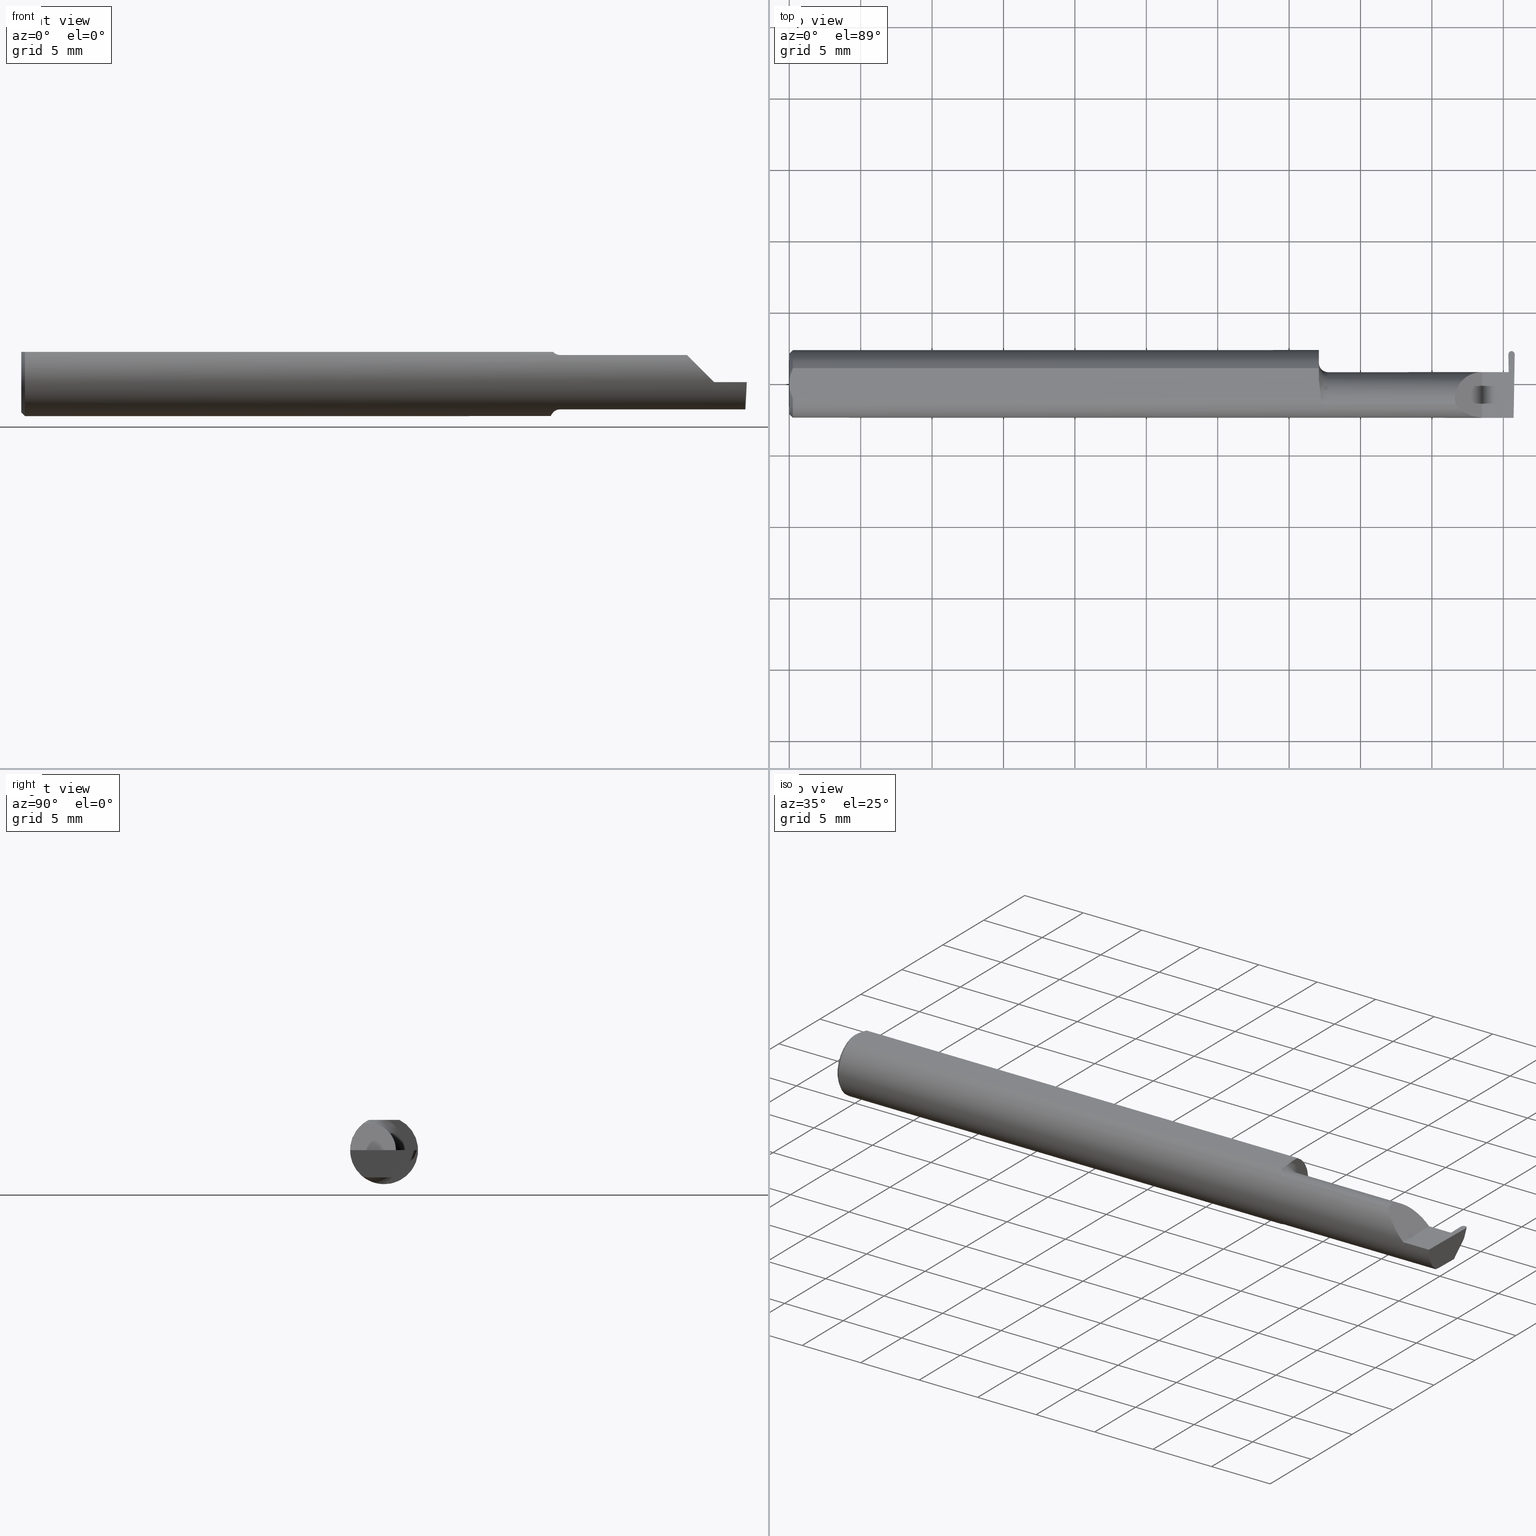
[diagram: canonical four-view strip — front | top / right | iso, engineering-drawing reading convention]
A machine part, canonical four-view strip (front | top / right | iso — engineering-drawing reading convention). The complete STEP part file that produces these views, byte-faithful:
ISO-10303-21;
HEADER;
FILE_DESCRIPTION (( 'STEP AP203' ),
    '1' );
FILE_NAME ('221810-GFR017K-8.STEP',
    '2024-06-17T17:58:59',
    ( '' ),
    ( '' ),
    'SwSTEP 2.0',
    'SolidWorks 2022',
    '' );
FILE_SCHEMA (( 'CONFIG_CONTROL_DESIGN' ));
ENDSEC;

DATA;
#1 = AXIS2_PLACEMENT_3D ( 'NONE', #292, #599, #550 ) ;
#2 = APPLICATION_CONTEXT ( 'configuration controlled 3d designs of mechanical parts and assemblies' ) ;
#3 = ORIENTED_EDGE ( 'NONE', *, *, #503, .F. ) ;
#4 = CARTESIAN_POINT ( 'NONE',  ( 1.459999999999999964, -0.006757276995305246635, -0.09335576686851605743 ) ) ;
#5 = FACE_OUTER_BOUND ( 'NONE', #143, .T. ) ;
#6 = EDGE_LOOP ( 'NONE', ( #461, #192, #274, #208 ) ) ;
#7 = CARTESIAN_POINT ( 'NONE',  ( 0.004492168231814808177, 0.02859366993844194779, 0.08359999999999991049 ) ) ;
#8 = DIRECTION ( 'NONE',  ( 1.000000000000000000, 0.000000000000000000, 0.000000000000000000 ) ) ;
#9 = ORIENTED_EDGE ( 'NONE', *, *, #156, .F. ) ;
#10 = DIRECTION ( 'NONE',  ( 1.000000000000000000, -0.000000000000000000, -0.000000000000000000 ) ) ;
#11 = CYLINDRICAL_SURFACE ( 'NONE', #1, 0.07500000000000003886 ) ;
#12 = ORIENTED_EDGE ( 'NONE', *, *, #201, .F. ) ;
#13 = DIRECTION ( 'NONE',  ( 1.000000000000000000, 0.000000000000000000, 0.000000000000000000 ) ) ;
#14 = CARTESIAN_POINT ( 'NONE',  ( 2.387527623501553705E-17, -0.01462709520273675068, 0.08359999999999991049 ) ) ;
#15 = VECTOR ( 'NONE', #333, 39.37007874015748854 ) ;
#16 = ORIENTED_EDGE ( 'NONE', *, *, #301, .F. ) ;
#17 = CARTESIAN_POINT ( 'NONE',  ( 1.996037309634248524, 0.08282371805517330099, -0.01966084749376884044 ) ) ;
#18 = PRODUCT_DEFINITION_FORMATION_WITH_SPECIFIED_SOURCE ( 'ANY', '', #455, .NOT_KNOWN. ) ;
#19 = CARTESIAN_POINT ( 'NONE',  ( 1.475047675231717204, -0.05464443219068155361, -0.07601042893068199469 ) ) ;
#20 = CC_DESIGN_PERSON_AND_ORGANIZATION_ASSIGNMENT ( #318, #527, ( #666 ) ) ;
#21 = DIRECTION ( 'NONE',  ( 0.03547001781079536092, 0.000000000000000000, -0.9993707409347653003 ) ) ;
#22 = FACE_OUTER_BOUND ( 'NONE', #651, .T. ) ;
#23 = EDGE_CURVE ( 'NONE', #565, #394, #87, .T. ) ;
#24 = CARTESIAN_POINT ( 'NONE',  ( 1.977144687181002336, 0.03221730376948680336, -0.005231735530809601513 ) ) ;
#25 = TOROIDAL_SURFACE ( 'NONE', #240, 0.09999999999999999167, 0.02499999999999993894 ) ;
#26 = CARTESIAN_POINT ( 'NONE',  ( 1.468379054196076394, -0.04728090127810220811, -0.08090622725813378935 ) ) ;
#27 = CC_DESIGN_APPROVAL ( #676, ( #18 ) ) ;
#28 = VERTEX_POINT ( 'NONE', #691 ) ;
#29 = DIRECTION ( 'NONE',  ( 0.000000000000000000, 0.000000000000000000, -1.000000000000000000 ) ) ;
#30 = CARTESIAN_POINT ( 'NONE',  ( 1.986094660071884288, -0.04260000000000003367, -0.07500000000000002498 ) ) ;
#31 = SHAPE_DEFINITION_REPRESENTATION ( #131, #669 ) ;
#32 = AXIS2_PLACEMENT_3D ( 'NONE', #140, #518, #296 ) ;
#33 = CARTESIAN_POINT ( 'NONE',  ( 1.996436576927335116, 0.02748456554894272708, -0.07500000000000002498 ) ) ;
#34 = EDGE_CURVE ( 'NONE', #341, #643, #536, .T. ) ;
#35 = DATE_AND_TIME ( #693, #188 ) ;
#36 = ORIENTED_EDGE ( 'NONE', *, *, #146, .T. ) ;
#37 = CARTESIAN_POINT ( 'NONE',  ( 1.484999999999999876, -0.05810704225352104207, 0.07337936794867834511 ) ) ;
#38 = CARTESIAN_POINT ( 'NONE',  ( 1.836620632051321200, -0.05810704225352102820, 0.07337936794867834511 ) ) ;
#39 = VERTEX_POINT ( 'NONE', #684 ) ;
#40 = CARTESIAN_POINT ( 'NONE',  ( -3.937007874019685528E-05, 0.09039999999999999425, 0.000000000000000000 ) ) ;
#41 = CARTESIAN_POINT ( 'NONE',  ( 1.459999999999999964, 0.01227294415283370320, 0.08359999999999991049 ) ) ;
#42 = VECTOR ( 'NONE', #613, 39.37007874015748143 ) ;
#43 = APPROVAL_STATUS ( 'not_yet_approved' ) ;
#44 = EDGE_CURVE ( 'NONE', #257, #585, #182, .T. ) ;
#45 = ORIENTED_EDGE ( 'NONE', *, *, #137, .T. ) ;
#46 = DIRECTION ( 'NONE',  ( 3.267875774690260159E-17, -1.000000000000000000, 0.000000000000000000 ) ) ;
#47 = ADVANCED_FACE ( 'NONE', ( #472 ), #113, .T. ) ;
#48 = ORIENTED_EDGE ( 'NONE', *, *, #127, .T. ) ;
#49 = DIRECTION ( 'NONE',  ( 0.000000000000000000, 0.000000000000000000, 1.000000000000000000 ) ) ;
#50 = EDGE_LOOP ( 'NONE', ( #577, #579, #427, #531, #172, #509 ) ) ;
#51 = ORIENTED_EDGE ( 'NONE', *, *, #555, .T. ) ;
#52 = DIRECTION ( 'NONE',  ( -0.03701368837992445593, -0.7066222423871552083, -0.7066222423871628688 ) ) ;
#53 = CARTESIAN_POINT ( 'NONE',  ( 1.459999999999999964, 0.01227294415283370320, 0.08359999999999991049 ) ) ;
#54 = ORIENTED_EDGE ( 'NONE', *, *, #218, .T. ) ;
#55 = CARTESIAN_POINT ( 'NONE',  ( 1.996630704565214964, 0.03119062438263837597, -0.07129394116630433098 ) ) ;
#56 = CARTESIAN_POINT ( 'NONE',  ( 1.910000000000000142, 0.03239999999999998437, 6.613092715395735816E-17 ) ) ;
#57 = LOCAL_TIME ( 10, 58, 59.00000000000000000, #375 ) ;
#58 = ORIENTED_EDGE ( 'NONE', *, *, #34, .T. ) ;
#59 = LINE ( 'NONE', #111, #668 ) ;
#60 = CARTESIAN_POINT ( 'NONE',  ( 1.983457986492379144, 0.07687344668278631166, -0.02561111886615591304 ) ) ;
#61 = EDGE_CURVE ( 'NONE', #585, #159, #435, .T. ) ;
#62 = VERTEX_POINT ( 'NONE', #41 ) ;
#63 = CARTESIAN_POINT ( 'NONE',  ( 2.999519565323742037E-32, -0.09359999999999998876, 2.449293598294716768E-16 ) ) ;
#64 = CARTESIAN_POINT ( 'NONE',  ( 0.000000000000000000, 0.000000000000000000, 0.08359999999999991049 ) ) ;
#65 = CIRCLE ( 'NONE', #32, 0.08359999999999989662 ) ;
#66 = DIRECTION ( 'NONE',  ( -0.01745240643727645827, -0.9998476951563912696, 0.000000000000000000 ) ) ;
#67 = DIRECTION ( 'NONE',  ( -0.01745240643727688848, 0.9998476951563912696, -0.000000000000000000 ) ) ;
#68 = B_SPLINE_CURVE_WITH_KNOTS ( 'NONE', 3,
 ( #24, #133, #190, #81 ),
 .UNSPECIFIED., .F., .F.,
 ( 4, 4 ),
 ( 0.000000000000000000, 1.000000000000000000 ),
 .UNSPECIFIED. ) ;
#69 = EDGE_CURVE ( 'NONE', #175, #694, #161, .T. ) ;
#70 = VERTEX_POINT ( 'NONE', #697 ) ;
#71 = CARTESIAN_POINT ( 'NONE',  ( 0.000000000000000000, 0.000000000000000000, 0.000000000000000000 ) ) ;
#72 = B_SPLINE_CURVE_WITH_KNOTS ( 'NONE', 3,
 ( #179, #501, #606, #7, #173, #390 ),
 .UNSPECIFIED., .F., .F.,
 ( 4, 2, 4 ),
 ( 0.001744210492668864416, 0.002295110172257193264, 0.002846009851845522111 ),
 .UNSPECIFIED. ) ;
#73 = CARTESIAN_POINT ( 'NONE',  ( 2.191425808082400728, 0.09360000000000005815, 0.08359999999999991049 ) ) ;
#74 = EDGE_CURVE ( 'NONE', #268, #110, #217, .T. ) ;
#75 = CARTESIAN_POINT ( 'NONE',  ( 1.986094859449813121, -0.04276086386476051632, -0.07500000000000002498 ) ) ;
#76 = DIRECTION ( 'NONE',  ( 0.000000000000000000, -1.000000000000000000, 0.000000000000000000 ) ) ;
#77 = AXIS2_PLACEMENT_3D ( 'NONE', #71, #181, #353 ) ;
#78 = EDGE_CURVE ( 'NONE', #159, #552, #449, .T. ) ;
#79 = VECTOR ( 'NONE', #67, 39.37007874015748143 ) ;
#80 = PLANE ( 'NONE',  #440 ) ;
#81 = CARTESIAN_POINT ( 'NONE',  ( 1.977327383411515482, 0.03239999999999999825, 0.000000000000000000 ) ) ;
#82 = PLANE ( 'NONE',  #253 ) ;
#83 =( BOUNDED_CURVE ( )  B_SPLINE_CURVE ( 3, ( #108, #112, #445, #554 ),
 .UNSPECIFIED., .F., .T. ) 
 B_SPLINE_CURVE_WITH_KNOTS ( ( 4, 4 ),
 ( 0.2063001339125308253, 1.107331509589561058 ),
 .UNSPECIFIED. ) 
 CURVE ( )  GEOMETRIC_REPRESENTATION_ITEM ( )  RATIONAL_B_SPLINE_CURVE ( ( 1.000000000000000000, 0.9334817841311873199, 0.9334817841311873199, 1.000000000000000000 ) ) 
 REPRESENTATION_ITEM ( '' )  );
#84 =( NAMED_UNIT ( * ) PLANE_ANGLE_UNIT ( ) SI_UNIT ( $, .RADIAN. ) );
#85 = ADVANCED_FACE ( 'NONE', ( #5 ), #234, .T. ) ;
#86 = CARTESIAN_POINT ( 'NONE',  ( 2.115884466375952400, -0.04259999999999973530, -0.07500000000000002498 ) ) ;
#87 =( BOUNDED_CURVE ( )  B_SPLINE_CURVE ( 3, ( #168, #262, #321, #92 ),
 .UNSPECIFIED., .F., .T. ) 
 B_SPLINE_CURVE_WITH_KNOTS ( ( 4, 4 ),
 ( 0.2552020043920813497, 0.4634648172053402182 ),
 .UNSPECIFIED. ) 
 CURVE ( )  GEOMETRIC_REPRESENTATION_ITEM ( )  RATIONAL_B_SPLINE_CURVE ( ( 1.000000000000000000, 0.9963888149483994816, 0.9963888149483994816, 1.000000000000000000 ) ) 
 REPRESENTATION_ITEM ( '' )  );
#88 = APPROVAL_DATE_TIME ( #35, #676 ) ;
#89 = ORIENTED_EDGE ( 'NONE', *, *, #566, .T. ) ;
#90 = CARTESIAN_POINT ( 'NONE',  ( 1.480292432600753827, -0.05747478081012627471, 0.07388601572377852256 ) ) ;
#91 = FACE_OUTER_BOUND ( 'NONE', #698, .T. ) ;
#92 = CARTESIAN_POINT ( 'NONE',  ( 1.995213246285213016, -0.04259999999999973530, -0.07500000000000002498 ) ) ;
#93 = ORIENTED_EDGE ( 'NONE', *, *, #156, .T. ) ;
#94 = CARTESIAN_POINT ( 'NONE',  ( 1.470033121973953527, -0.04963861219531613689, 0.07943694244057658560 ) ) ;
#95 = B_SPLINE_CURVE_WITH_KNOTS ( 'NONE', 3,
 ( #269, #328, #94, #200, #205, #90, #317, #37 ),
 .UNSPECIFIED., .F., .F.,
 ( 4, 2, 2, 4 ),
 ( 4.741820243497489681E-07, 0.0003579866703973862293, 0.0005367429145838981900, 0.0007154991587704100965 ),
 .UNSPECIFIED. ) ;
#96 = EDGE_CURVE ( 'NONE', #110, #62, #608, .T. ) ;
#97 = COORDINATED_UNIVERSAL_TIME_OFFSET ( 8, 0, .BEHIND. ) ;
#98 = ORIENTED_EDGE ( 'NONE', *, *, #504, .T. ) ;
#99 = FACE_OUTER_BOUND ( 'NONE', #319, .T. ) ;
#100 = ORIENTED_EDGE ( 'NONE', *, *, #581, .F. ) ;
#101 = CC_DESIGN_PERSON_AND_ORGANIZATION_ASSIGNMENT ( #325, #436, ( #18 ) ) ;
#102 = VERTEX_POINT ( 'NONE', #225 ) ;
#103 = PLANE ( 'NONE',  #499 ) ;
#104 = CARTESIAN_POINT ( 'NONE',  ( 0.000000000000000000, -0.04209513035969864037, 0.08359999999999988274 ) ) ;
#105 = CIRCLE ( 'NONE', #530, 0.07500000000000003886 ) ;
#106 = ORIENTED_EDGE ( 'NONE', *, *, #227, .T. ) ;
#107 = LINE ( 'NONE', #63, #430 ) ;
#108 = CARTESIAN_POINT ( 'NONE',  ( 1.994999172194938941, -0.05810704225352106983, -0.07337936794867833123 ) ) ;
#109 = AXIS2_PLACEMENT_3D ( 'NONE', #523, #404, #29 ) ;
#110 = VERTEX_POINT ( 'NONE', #177 ) ;
#111 = CARTESIAN_POINT ( 'NONE',  ( 1.983339777177351770, 0.03239999999999999825, 4.732000043842598316E-21 ) ) ;
#112 = CARTESIAN_POINT ( 'NONE',  ( 1.995231968854677573, -0.08092595952420823802, -0.05530971394246247952 ) ) ;
#113 = CONICAL_SURFACE ( 'NONE', #300, 0.08359999999999989662, 0.7853981633974458365 ) ;
#114 = ORIENTED_EDGE ( 'NONE', *, *, #504, .F. ) ;
#115 = DIRECTION ( 'NONE',  ( -1.000000000000000000, -3.267875774690260159E-17, -0.000000000000000000 ) ) ;
#116 = CARTESIAN_POINT ( 'NONE',  ( 1.991240804999999670, 0.08344181815339780928, -0.01904274739554432869 ) ) ;
#117 = AXIS2_PLACEMENT_3D ( 'NONE', #489, #386, #635 ) ;
#118 = CC_DESIGN_SECURITY_CLASSIFICATION ( #460, ( #18 ) ) ;
#119 = ORIENTED_EDGE ( 'NONE', *, *, #44, .F. ) ;
#120 = CARTESIAN_POINT ( 'NONE',  ( 1.991240804999999225, 0.08541976413866105011, -0.01365817340858963697 ) ) ;
#121 = DIRECTION ( 'NONE',  ( -0.03876062227022355339, 0.3417631236437465025, 0.9389864650134710500 ) ) ;
#122 = ADVANCED_FACE ( 'NONE', ( #402 ), #11, .T. ) ;
#123 = VERTEX_POINT ( 'NONE', #459 ) ;
#124 = CARTESIAN_POINT ( 'NONE',  ( 1.994999172194938941, -0.05810704225352106983, -0.07337936794867833123 ) ) ;
#125 = CARTESIAN_POINT ( 'NONE',  ( 1.988366712856626473, 0.05579773807489041976, -0.06948564479986588105 ) ) ;
#126 = B_SPLINE_CURVE_WITH_KNOTS ( 'NONE', 3,
 ( #132, #314, #664, #19, #411, #26, #465, #358, #256, #567, #299, #417 ),
 .UNSPECIFIED., .F., .F.,
 ( 4, 2, 2, 2, 2, 4 ),
 ( 1.968126669309073504E-07, 0.0002104342718631983333, 0.0004206717310594657966, 0.0008411466494519999641, 0.001261621567844534294, 0.001682096486237068516 ),
 .UNSPECIFIED. ) ;
#127 = EDGE_CURVE ( 'NONE', #565, #28, #83, .T. ) ;
#128 = VECTOR ( 'NONE', #670, 39.37007874015748143 ) ;
#129 = ORIENTED_EDGE ( 'NONE', *, *, #419, .T. ) ;
#130 = DIRECTION ( 'NONE',  ( 1.000000000000000000, -0.000000000000000000, -0.000000000000000000 ) ) ;
#131 = PRODUCT_DEFINITION_SHAPE ( 'NONE', 'NONE',  #666 ) ;
#132 = CARTESIAN_POINT ( 'NONE',  ( 1.484999999999999876, -0.05810704225352104901, -0.07337936794867834511 ) ) ;
#133 = CARTESIAN_POINT ( 'NONE',  ( 1.977205585924506570, 0.03227820251299119703, -0.003487823687206395660 ) ) ;
#134 = CC_DESIGN_DATE_AND_TIME_ASSIGNMENT ( #525, #681, ( #460 ) ) ;
#135 =( BOUNDED_CURVE ( )  B_SPLINE_CURVE ( 3, ( #647, #167, #557, #350 ),
 .UNSPECIFIED., .F., .F. ) 
 B_SPLINE_CURVE_WITH_KNOTS ( ( 4, 4 ),
 ( 6.177091236413993158, 7.752341154236727760 ),
 .UNSPECIFIED. ) 
 CURVE ( )  GEOMETRIC_REPRESENTATION_ITEM ( )  RATIONAL_B_SPLINE_CURVE ( ( 1.000000000000000000, 0.8036869647627045143, 0.8036869647627045143, 1.000000000000000000 ) ) 
 REPRESENTATION_ITEM ( '' )  );
#136 = CARTESIAN_POINT ( 'NONE',  ( 1.459999999999999964, -0.04260000000000005449, 0.000000000000000000 ) ) ;
#137 = EDGE_CURVE ( 'NONE', #376, #102, #237, .T. ) ;
#138 = PERSON_AND_ORGANIZATION_ROLE ( 'design_owner' ) ;
#139 = FACE_OUTER_BOUND ( 'NONE', #50, .T. ) ;
#140 = CARTESIAN_POINT ( 'NONE',  ( 0.000000000000000000, 0.000000000000000000, 0.000000000000000000 ) ) ;
#141 = VECTOR ( 'NONE', #481, 39.37007874015748143 ) ;
#142 = CARTESIAN_POINT ( 'NONE',  ( 1.910000000000000142, -0.2500000000000000555, 1.102182119232621301E-17 ) ) ;
#143 = EDGE_LOOP ( 'NONE', ( #648, #497, #631, #457, #422 ) ) ;
#144 = CARTESIAN_POINT ( 'NONE',  ( 1.991358560907505959, 0.09039999999999999425, 0.000000000000000000 ) ) ;
#145 = AXIS2_PLACEMENT_3D ( 'NONE', #193, #517, #672 ) ;
#146 = EDGE_CURVE ( 'NONE', #102, #211, #311, .T. ) ;
#147 = VECTOR ( 'NONE', #678, 39.37007874015748143 ) ;
#148 = ORIENTED_EDGE ( 'NONE', *, *, #696, .T. ) ;
#149 = CARTESIAN_POINT ( 'NONE',  ( 0.000000000000000000, 0.000000000000000000, 0.000000000000000000 ) ) ;
#150 = ADVANCED_FACE ( 'NONE', ( #393 ), #462, .T. ) ;
#151 = VERTEX_POINT ( 'NONE', #56 ) ;
#152 = PERSON_AND_ORGANIZATION ( #297, #263 ) ;
#153 = EDGE_LOOP ( 'NONE', ( #228, #255, #327, #148 ) ) ;
#154 = CARTESIAN_POINT ( 'NONE',  ( 1.983339777177351770, 0.03239999999999999825, 0.000000000000000000 ) ) ;
#155 = AXIS2_PLACEMENT_3D ( 'NONE', #342, #13, #275 ) ;
#156 = EDGE_CURVE ( 'NONE', #268, #694, #165, .T. ) ;
#157 = ORIENTED_EDGE ( 'NONE', *, *, #78, .T. ) ;
#158 = COORDINATED_UNIVERSAL_TIME_OFFSET ( 8, 0, .BEHIND. ) ;
#159 = VERTEX_POINT ( 'NONE', #174 ) ;
#160 = DIRECTION ( 'NONE',  ( 1.000000000000000000, -0.000000000000000000, -0.000000000000000000 ) ) ;
#161 = LINE ( 'NONE', #381, #276 ) ;
#162 = CALENDAR_DATE ( 2024, 17, 6 ) ;
#163 = ORIENTED_EDGE ( 'NONE', *, *, #419, .F. ) ;
#164 = PLANE ( 'NONE',  #305 ) ;
#165 = CIRCLE ( 'NONE', #264, 0.09360000000000001652 ) ;
#166 = ORIENTED_EDGE ( 'NONE', *, *, #533, .T. ) ;
#167 = CARTESIAN_POINT ( 'NONE',  ( 1.985975431331754804, 0.09040000000000000813, -7.891494905330330497E-18 ) ) ;
#168 = CARTESIAN_POINT ( 'NONE',  ( 1.994999172194938941, -0.05810704225352106983, -0.07337936794867833123 ) ) ;
#169 = ORIENTED_EDGE ( 'NONE', *, *, #218, .F. ) ;
#170 = FACE_OUTER_BOUND ( 'NONE', #688, .T. ) ;
#171 = CARTESIAN_POINT ( 'NONE',  ( 1.460000000000000187, 0.003280657920457281333, 0.08359999999999991049 ) ) ;
#172 = ORIENTED_EDGE ( 'NONE', *, *, #555, .F. ) ;
#173 = CARTESIAN_POINT ( 'NONE',  ( 0.007036739039485840133, 0.03550621559607060329, 0.08359999999999991049 ) ) ;
#174 = CARTESIAN_POINT ( 'NONE',  ( 1.983339777177351770, 0.03239999999999999825, 0.000000000000000000 ) ) ;
#175 = VERTEX_POINT ( 'NONE', #183 ) ;
#176 = FACE_OUTER_BOUND ( 'NONE', #6, .T. ) ;
#177 = CARTESIAN_POINT ( 'NONE',  ( 1.466129652885479473, -0.04209513035970116612, 0.08359999999999991049 ) ) ;
#178 = EDGE_CURVE ( 'NONE', #151, #413, #453, .T. ) ;
#179 = CARTESIAN_POINT ( 'NONE',  ( 0.000000000000000000, 0.000000000000000000, 0.08359999999999991049 ) ) ;
#180 = CARTESIAN_POINT ( 'NONE',  ( 1.466082007218903360, -0.03301619840524119137, 0.08359999999999991049 ) ) ;
#181 = DIRECTION ( 'NONE',  ( 0.000000000000000000, 0.000000000000000000, 1.000000000000000000 ) ) ;
#182 =( BOUNDED_CURVE ( )  B_SPLINE_CURVE ( 3, ( #641, #331, #584, #266 ),
 .UNSPECIFIED., .F., .F. ) 
 B_SPLINE_CURVE_WITH_KNOTS ( ( 4, 4 ),
 ( 3.176499238629678867, 4.677482395344799926 ),
 .UNSPECIFIED. ) 
 CURVE ( )  GEOMETRIC_REPRESENTATION_ITEM ( )  RATIONAL_B_SPLINE_CURVE ( ( 1.000000000000000000, 0.8209024677461141950, 0.8209024677461141950, 1.000000000000000000 ) ) 
 REPRESENTATION_ITEM ( '' )  );
#183 = CARTESIAN_POINT ( 'NONE',  ( 0.000000000000000000, 0.000000000000000000, -0.08359999999999989662 ) ) ;
#184 = EDGE_CURVE ( 'NONE', #565, #39, #335, .T. ) ;
#185 = MECHANICAL_CONTEXT ( 'NONE', #420, 'mechanical' ) ;
#186 = CARTESIAN_POINT ( 'NONE',  ( 1.733740805000000051, -0.05810704225352107677, 0.07337936794867833123 ) ) ;
#187 = AXIS2_PLACEMENT_3D ( 'NONE', #40, #326, #539 ) ;
#188 = LOCAL_TIME ( 10, 58, 59.00000000000000000, #97 ) ;
#189 = ORIENTED_EDGE ( 'NONE', *, *, #69, .F. ) ;
#190 = CARTESIAN_POINT ( 'NONE',  ( 1.977266484668011248, 0.03233910125649559764, -0.001743911843603197613 ) ) ;
#191 = DIRECTION ( 'NONE',  ( 0.03876062227022340767, 0.3417631236437464470, 0.9389864650134710500 ) ) ;
#192 = ORIENTED_EDGE ( 'NONE', *, *, #617, .F. ) ;
#193 = CARTESIAN_POINT ( 'NONE',  ( 1.459999999999999964, 0.000000000000000000, 0.000000000000000000 ) ) ;
#194 = CARTESIAN_POINT ( 'NONE',  ( 1.986007795843374391, 0.02748456554894274442, -0.07500000000000001110 ) ) ;
#195 = AXIS2_PLACEMENT_3D ( 'NONE', #470, #563, #410 ) ;
#196 = CARTESIAN_POINT ( 'NONE',  ( 1.459999999999999964, 0.03221730376948683805, -0.005231735530808946655 ) ) ;
#197 = CARTESIAN_POINT ( 'NONE',  ( 1.998599639583657162, 0.06877923926384967024, -0.03370532628509262385 ) ) ;
#198 = VECTOR ( 'NONE', #546, 39.37007874015748854 ) ;
#199 = ORIENTED_EDGE ( 'NONE', *, *, #483, .T. ) ;
#200 = CARTESIAN_POINT ( 'NONE',  ( 1.474565501274438306, -0.05415466354550839412, 0.07636456853488576835 ) ) ;
#201 = EDGE_CURVE ( 'NONE', #643, #376, #607, .T. ) ;
#202 = EDGE_CURVE ( 'NONE', #268, #204, #361, .T. ) ;
#203 = APPROVAL_STATUS ( 'not_yet_approved' ) ;
#204 = VERTEX_POINT ( 'NONE', #64 ) ;
#205 = CARTESIAN_POINT ( 'NONE',  ( 1.476308147845286189, -0.05549979236676341743, 0.07538081185522380046 ) ) ;
#206 =( BOUNDED_CURVE ( )  B_SPLINE_CURVE ( 3, ( #609, #553, #120, #656 ),
 .UNSPECIFIED., .F., .F. ) 
 B_SPLINE_CURVE_WITH_KNOTS ( ( 4, 4 ),
 ( 1.570796326794940967, 1.647233243520375812 ),
 .UNSPECIFIED. ) 
 CURVE ( )  GEOMETRIC_REPRESENTATION_ITEM ( )  RATIONAL_B_SPLINE_CURVE ( ( 1.000000000000000000, 0.9995131757411308548, 0.9995131757411308548, 1.000000000000000000 ) ) 
 REPRESENTATION_ITEM ( '' )  );
#207 = ADVANCED_FACE ( 'NONE', ( #660 ), #82, .F. ) ;
#208 = ORIENTED_EDGE ( 'NONE', *, *, #685, .F. ) ;
#209 = FACE_OUTER_BOUND ( 'NONE', #352, .T. ) ;
#210 = CARTESIAN_POINT ( 'NONE',  ( 0.000000000000000000, 0.000000000000000000, 0.000000000000000000 ) ) ;
#211 = VERTEX_POINT ( 'NONE', #197 ) ;
#212 = CARTESIAN_POINT ( 'NONE',  ( 1.880893035518782730, -0.09359999999999997489, 0.02910696448121682239 ) ) ;
#213 = ORIENTED_EDGE ( 'NONE', *, *, #604, .F. ) ;
#214 = DATE_AND_TIME ( #162, #291 ) ;
#215 = ORIENTED_EDGE ( 'NONE', *, *, #468, .F. ) ;
#216 = CARTESIAN_POINT ( 'NONE',  ( 1.459999999999999964, 0.09359999999999996101, 0.000000000000000000 ) ) ;
#217 = LINE ( 'NONE', #104, #475 ) ;
#218 = EDGE_CURVE ( 'NONE', #485, #123, #574, .T. ) ;
#219 = ORIENTED_EDGE ( 'NONE', *, *, #23, .F. ) ;
#220 = CARTESIAN_POINT ( 'NONE',  ( 1.988366712856626695, 0.06402004850676712433, -0.07247832105396549707 ) ) ;
#221 = ORIENTED_EDGE ( 'NONE', *, *, #600, .F. ) ;
#222 = EDGE_LOOP ( 'NONE', ( #450, #528, #545, #199 ) ) ;
#223 = DIRECTION ( 'NONE',  ( 0.000000000000000000, 0.000000000000000000, 1.000000000000000000 ) ) ;
#224 = CIRCLE ( 'NONE', #155, 0.09360000000000001652 ) ;
#225 = CARTESIAN_POINT ( 'NONE',  ( 1.991240804999999670, 0.08344181815339780928, -0.01904274739554432869 ) ) ;
#226 = CC_DESIGN_DATE_AND_TIME_ASSIGNMENT ( #491, #484, ( #666 ) ) ;
#227 = EDGE_CURVE ( 'NONE', #39, #590, #126, .T. ) ;
#228 = ORIENTED_EDGE ( 'NONE', *, *, #61, .F. ) ;
#229 = LINE ( 'NONE', #448, #15 ) ;
#230 = CARTESIAN_POINT ( 'NONE',  ( 1.991240804999999670, 0.08344181815339780928, -0.01904274739554432869 ) ) ;
#231 = VERTEX_POINT ( 'NONE', #620 ) ;
#232 = CARTESIAN_POINT ( 'NONE',  ( 1.484999999999999876, -0.04260000000000005449, 0.000000000000000000 ) ) ;
#233 = EDGE_CURVE ( 'NONE', #394, #257, #514, .T. ) ;
#234 = CYLINDRICAL_SURFACE ( 'NONE', #568, 0.008750000000000000833 ) ;
#235 = ORIENTED_EDGE ( 'NONE', *, *, #308, .F. ) ;
#236 = LINE ( 'NONE', #220, #329 ) ;
#237 =( BOUNDED_CURVE ( )  B_SPLINE_CURVE ( 3, ( #277, #60, #502, #230 ),
 .UNSPECIFIED., .F., .F. ) 
 B_SPLINE_CURVE_WITH_KNOTS ( ( 4, 4 ),
 ( 4.726007796544807071, 6.224820797642042436 ),
 .UNSPECIFIED. ) 
 CURVE ( )  GEOMETRIC_REPRESENTATION_ITEM ( )  RATIONAL_B_SPLINE_CURVE ( ( 1.000000000000000000, 0.8213955281430405098, 0.8213955281430405098, 1.000000000000000000 ) ) 
 REPRESENTATION_ITEM ( '' )  );
#238 = CC_DESIGN_PERSON_AND_ORGANIZATION_ASSIGNMENT ( #152, #421, ( #18 ) ) ;
#239 = CARTESIAN_POINT ( 'NONE',  ( 0.000000000000000000, 0.000000000000000000, 0.08359999999999991049 ) ) ;
#240 = AXIS2_PLACEMENT_3D ( 'NONE', #496, #380, #46 ) ;
#241 = DIRECTION ( 'NONE',  ( 0.000000000000000000, -0.9396926207859084279, 0.3420201433256688794 ) ) ;
#242 =( BOUNDED_CURVE ( )  B_SPLINE_CURVE ( 3, ( #251, #244, #415, #245 ),
 .UNSPECIFIED., .F., .F. ) 
 B_SPLINE_CURVE_WITH_KNOTS ( ( 4, 4 ),
 ( 6.074922494366330916, 7.853981633974482790 ),
 .UNSPECIFIED. ) 
 CURVE ( )  GEOMETRIC_REPRESENTATION_ITEM ( )  RATIONAL_B_SPLINE_CURVE ( ( 1.000000000000000000, 0.7531850099525148057, 0.7531850099525148057, 1.000000000000000000 ) ) 
 REPRESENTATION_ITEM ( '' )  );
#243 = VECTOR ( 'NONE', #130, 39.37007874015748143 ) ;
#244 = CARTESIAN_POINT ( 'NONE',  ( 1.825958805822864628, -0.007655250284932078528, 0.08404119417713461215 ) ) ;
#245 = CARTESIAN_POINT ( 'NONE',  ( 1.910000000000000142, 0.03239999999999998437, 6.613092715395735816E-17 ) ) ;
#246 = CARTESIAN_POINT ( 'NONE',  ( 1.999990968925781987, 0.08104697476785363564, 0.000000000000000000 ) ) ;
#247 = CARTESIAN_POINT ( 'NONE',  ( 1.999998665932175124, 0.08148793596879662371, 0.000000000000000000 ) ) ;
#248 = ORIENTED_EDGE ( 'NONE', *, *, #348, .F. ) ;
#249 = VERTEX_POINT ( 'NONE', #357 ) ;
#250 = CARTESIAN_POINT ( 'NONE',  ( 1.991123049092493602, 0.09039999999999999425, 0.000000000000000000 ) ) ;
#251 = CARTESIAN_POINT ( 'NONE',  ( 1.836620632051321200, -0.05810704225352102820, 0.07337936794867834511 ) ) ;
#252 = EDGE_CURVE ( 'NONE', #70, #407, #366, .T. ) ;
#253 = AXIS2_PLACEMENT_3D ( 'NONE', #142, #626, #469 ) ;
#254 = PERSON_AND_ORGANIZATION ( #297, #263 ) ;
#255 = ORIENTED_EDGE ( 'NONE', *, *, #690, .T. ) ;
#256 = CARTESIAN_POINT ( 'NONE',  ( 1.461762116932663336, -0.02818790137206265284, -0.08941930521177111901 ) ) ;
#257 = VERTEX_POINT ( 'NONE', #30 ) ;
#258 = LINE ( 'NONE', #529, #141 ) ;
#259 = PRODUCT_RELATED_PRODUCT_CATEGORY ( 'detail', '', ( #455 ) ) ;
#260 = COORDINATED_UNIVERSAL_TIME_OFFSET ( 8, 0, .BEHIND. ) ;
#261 = CARTESIAN_POINT ( 'NONE',  ( 2.115884466375952400, -0.04259999999999973530, -0.07500000000000002498 ) ) ;
#262 = CARTESIAN_POINT ( 'NONE',  ( 1.995050583981878400, -0.05300374992736046897, -0.07445783144524575903 ) ) ;
#263 = ORGANIZATION ( 'UNSPECIFIED', 'UNSPECIFIED', '' ) ;
#264 = AXIS2_PLACEMENT_3D ( 'NONE', #282, #8, #399 ) ;
#265 = ORIENTED_EDGE ( 'NONE', *, *, #283, .T. ) ;
#266 = CARTESIAN_POINT ( 'NONE',  ( 1.983525690212190273, 0.03221730376948681029, -0.005231735530809572890 ) ) ;
#267 = APPROVAL_STATUS ( 'not_yet_approved' ) ;
#268 = VERTEX_POINT ( 'NONE', #363 ) ;
#269 = CARTESIAN_POINT ( 'NONE',  ( 1.466129652885479473, -0.04209513035970116612, 0.08359999999999991049 ) ) ;
#270 = AXIS2_PLACEMENT_3D ( 'NONE', #73, #474, #616 ) ;
#271 = ORIENTED_EDGE ( 'NONE', *, *, #569, .T. ) ;
#272 = CARTESIAN_POINT ( 'NONE',  ( 1.854690286057536941, -0.08092595952420821026, 0.05530971394246249340 ) ) ;
#273 = VECTOR ( 'NONE', #562, 39.37007874015748854 ) ;
#274 = ORIENTED_EDGE ( 'NONE', *, *, #34, .F. ) ;
#275 = DIRECTION ( 'NONE',  ( 0.000000000000000000, 0.000000000000000000, -1.000000000000000000 ) ) ;
#276 = VECTOR ( 'NONE', #588, 39.37007874015748143 ) ;
#277 = CARTESIAN_POINT ( 'NONE',  ( 1.983881970416342400, 0.06877923926384973963, -0.03370532628509255446 ) ) ;
#278 = ADVANCED_FACE ( 'NONE', ( #22 ), #526, .F. ) ;
#279 = ORIENTED_EDGE ( 'NONE', *, *, #544, .T. ) ;
#280 = CYLINDRICAL_SURFACE ( 'NONE', #418, 0.09360000000000001652 ) ;
#281 = VECTOR ( 'NONE', #66, 39.37007874015748143 ) ;
#282 = CARTESIAN_POINT ( 'NONE',  ( 0.01000000000000016674, 0.000000000000000000, 0.000000000000000000 ) ) ;
#283 = EDGE_CURVE ( 'NONE', #175, #204, #65, .T. ) ;
#284 = VERTEX_POINT ( 'NONE', #33 ) ;
#285 = CARTESIAN_POINT ( 'NONE',  ( 1.986630673423979587, -1.954482585631507119, -0.02333781029786680811 ) ) ;
#286 = CARTESIAN_POINT ( 'NONE',  ( 1.982482944067824659, 0.08148793596879662371, 0.000000000000000000 ) ) ;
#287 = EDGE_LOOP ( 'NONE', ( #106, #248, #391, #336, #477 ) ) ;
#288 = CARTESIAN_POINT ( 'NONE',  ( 2.000000000000000000, -0.2500000000000000555, 0.000000000000000000 ) ) ;
#289 = CARTESIAN_POINT ( 'NONE',  ( 0.01000000000000016674, -0.04209513035969864037, 0.08359999999999988274 ) ) ;
#290 = PLANE ( 'NONE',  #593 ) ;
#291 = LOCAL_TIME ( 10, 58, 59.00000000000000000, #371 ) ;
#292 = CARTESIAN_POINT ( 'NONE',  ( 1.459999999999999964, -0.04260000000000005449, 0.000000000000000000 ) ) ;
#293 = ADVANCED_FACE ( 'NONE', ( #471 ), #80, .F. ) ;
#294 = ORIENTED_EDGE ( 'NONE', *, *, #348, .T. ) ;
#295 = LINE ( 'NONE', #75, #273 ) ;
#296 = DIRECTION ( 'NONE',  ( 0.000000000000000000, 0.000000000000000000, -1.000000000000000000 ) ) ;
#297 = PERSON ( 'UNSPECIFIED', 'UNSPECIFIED', 'UNSPECIFIED', ('UNSPECIFIED'), ('UNSPECIFIED'), ('UNSPECIFIED') ) ;
#298 =( GEOMETRIC_REPRESENTATION_CONTEXT ( 3 ) GLOBAL_UNCERTAINTY_ASSIGNED_CONTEXT ( ( #446 ) ) GLOBAL_UNIT_ASSIGNED_CONTEXT ( ( #622, #84, #571 ) ) REPRESENTATION_CONTEXT ( 'NONE', 'WORKASPACE' ) );
#299 = CARTESIAN_POINT ( 'NONE',  ( 1.459999999999999964, -0.01220003991882283832, -0.09296180880970876526 ) ) ;
#300 = AXIS2_PLACEMENT_3D ( 'NONE', #210, #429, #378 ) ;
#301 = EDGE_CURVE ( 'NONE', #211, #231, #673, .T. ) ;
#302 = ORIENTED_EDGE ( 'NONE', *, *, #630, .F. ) ;
#303 = DIRECTION ( 'NONE',  ( -1.000000000000000000, -3.267875774690260159E-17, -0.000000000000000000 ) ) ;
#304 = LINE ( 'NONE', #478, #147 ) ;
#305 = AXIS2_PLACEMENT_3D ( 'NONE', #149, #373, #428 ) ;
#306 = ORIENTED_EDGE ( 'NONE', *, *, #324, .F. ) ;
#307 = LOCAL_TIME ( 10, 58, 59.00000000000000000, #158 ) ;
#308 = EDGE_CURVE ( 'NONE', #62, #70, #304, .T. ) ;
#309 = CARTESIAN_POINT ( 'NONE',  ( 1.991358560907505959, 0.09039999999999999425, 0.000000000000000000 ) ) ;
#310 = DIRECTION ( 'NONE',  ( -0.9992386149554827179, 0.01744177490282310811, 0.03489949670250104552 ) ) ;
#311 =( BOUNDED_CURVE ( )  B_SPLINE_CURVE ( 3, ( #116, #17, #610, #498 ),
 .UNSPECIFIED., .F., .F. ) 
 B_SPLINE_CURVE_WITH_KNOTS ( ( 4, 4 ),
 ( 3.199957163127305382, 4.698770164224575829 ),
 .UNSPECIFIED. ) 
 CURVE ( )  GEOMETRIC_REPRESENTATION_ITEM ( )  RATIONAL_B_SPLINE_CURVE ( ( 1.000000000000000000, 0.8213955281430325162, 0.8213955281430325162, 1.000000000000000000 ) ) 
 REPRESENTATION_ITEM ( '' )  );
#312 = CALENDAR_DATE ( 2024, 17, 6 ) ;
#313 = ORIENTED_EDGE ( 'NONE', *, *, #301, .T. ) ;
#314 = CARTESIAN_POINT ( 'NONE',  ( 1.482196475348975140, -0.05810704225352104901, -0.07337936794867837287 ) ) ;
#315 = APPROVAL_DATE_TIME ( #677, #467 ) ;
#316 = ORIENTED_EDGE ( 'NONE', *, *, #178, .F. ) ;
#317 = CARTESIAN_POINT ( 'NONE',  ( 1.482603832840145852, -0.05810704225352100044, 0.07337936794867837287 ) ) ;
#318 = PERSON_AND_ORGANIZATION ( #297, #263 ) ;
#319 = EDGE_LOOP ( 'NONE', ( #403, #235, #294 ) ) ;
#320 = FACE_OUTER_BOUND ( 'NONE', #153, .T. ) ;
#321 = CARTESIAN_POINT ( 'NONE',  ( 1.995122200632949427, -0.04781600192481511025, -0.07500000000000003886 ) ) ;
#322 = ORIENTED_EDGE ( 'NONE', *, *, #600, .T. ) ;
#323 = PLANE ( 'NONE',  #374 ) ;
#324 = EDGE_CURVE ( 'NONE', #123, #151, #242, .T. ) ;
#325 = PERSON_AND_ORGANIZATION ( #297, #263 ) ;
#326 = DIRECTION ( 'NONE',  ( 0.000000000000000000, -0.9396926207859083169, 0.3420201433256689905 ) ) ;
#327 = ORIENTED_EDGE ( 'NONE', *, *, #630, .T. ) ;
#328 = CARTESIAN_POINT ( 'NONE',  ( 1.467870098798738088, -0.04602557371825106297, 0.08162090280442944878 ) ) ;
#329 = VECTOR ( 'NONE', #398, 39.37007874015748854 ) ;
#330 = CC_DESIGN_APPROVAL ( #467, ( #460 ) ) ;
#331 = CARTESIAN_POINT ( 'NONE',  ( 1.986043175114837744, -0.001060451341131600413, -0.07500000000000006661 ) ) ;
#332 = EDGE_LOOP ( 'NONE', ( #547, #48, #519, #129, #169, #3, #368, #93, #322, #679, #556, #639 ) ) ;
#333 = DIRECTION ( 'NONE',  ( -0.03876062227022355339, 0.3417631236437465025, 0.9389864650134709390 ) ) ;
#334 = CC_DESIGN_PERSON_AND_ORGANIZATION_ASSIGNMENT ( #576, #637, ( #460 ) ) ;
#335 = LINE ( 'NONE', #657, #537 ) ;
#336 = ORIENTED_EDGE ( 'NONE', *, *, #503, .T. ) ;
#337 = DIRECTION ( 'NONE',  ( -1.000000000000000000, -0.000000000000000000, -0.000000000000000000 ) ) ;
#338 = CLOSED_SHELL ( 'NONE', ( #653, #454, #548, #207, #596, #340, #47, #359, #122, #488, #383, #355, #388, #412, #293, #278, #621, #150, #85 ) ) ;
#339 = DIRECTION ( 'NONE',  ( -0.03876062227022340767, -0.3417631236437465025, -0.9389864650134710500 ) ) ;
#340 = ADVANCED_FACE ( 'NONE', ( #139 ), #408, .T. ) ;
#341 = VERTEX_POINT ( 'NONE', #194 ) ;
#342 = CARTESIAN_POINT ( 'NONE',  ( 0.01000000000000016674, 0.000000000000000000, 0.000000000000000000 ) ) ;
#343 = VECTOR ( 'NONE', #583, 39.37007874015748854 ) ;
#344 = CARTESIAN_POINT ( 'NONE',  ( 1.980394745474062690, 0.1353532775798606813, 0.03286871203091912275 ) ) ;
#345 = ORIENTED_EDGE ( 'NONE', *, *, #127, .F. ) ;
#346 = CARTESIAN_POINT ( 'NONE',  ( 1.999998665932175124, 0.08148793596879662371, 0.000000000000000000 ) ) ;
#347 = DIRECTION ( 'NONE',  ( -0.03701368837992476124, 0.7066222423871552083, 0.7066222423871628688 ) ) ;
#348 = EDGE_CURVE ( 'NONE', #62, #590, #636, .T. ) ;
#349 = ORIENTED_EDGE ( 'NONE', *, *, #202, .T. ) ;
#350 = CARTESIAN_POINT ( 'NONE',  ( 1.982490641074217796, 0.08104697476785366339, 0.000000000000000000 ) ) ;
#351 = DIRECTION ( 'NONE',  ( 0.000000000000000000, 0.9396926207859084279, -0.3420201433256688794 ) ) ;
#352 = EDGE_LOOP ( 'NONE', ( #500, #45, #36, #98, #213, #58 ) ) ;
#353 = DIRECTION ( 'NONE',  ( 1.000000000000000000, 0.000000000000000000, 0.000000000000000000 ) ) ;
#354 = CARTESIAN_POINT ( 'NONE',  ( 1.982482944067824659, 0.08148793596879662371, 0.000000000000000000 ) ) ;
#355 = ADVANCED_FACE ( 'NONE', ( #493 ), #438, .F. ) ;
#356 = CARTESIAN_POINT ( 'NONE',  ( 1.996506178668245202, 0.09039999999999986935, -6.455300748705125713E-19 ) ) ;
#357 = CARTESIAN_POINT ( 'NONE',  ( 1.977144687181002336, 0.03221730376948680336, -0.005231735530809601513 ) ) ;
#358 = CARTESIAN_POINT ( 'NONE',  ( 1.462856118429613828, -0.03323074941465640336, -0.08766015375840491286 ) ) ;
#359 = ADVANCED_FACE ( 'NONE', ( #486 ), #164, .F. ) ;
#360 = VECTOR ( 'NONE', #396, 39.37007874015748143 ) ;
#361 = B_SPLINE_CURVE_WITH_KNOTS ( 'NONE', 3,
 ( #289, #512, #14, #239 ),
 .UNSPECIFIED., .F., .F.,
 ( 4, 4 ),
 ( 0.0006429768761302093617, 0.001744210492668864416 ),
 .UNSPECIFIED. ) ;
#362 = APPLICATION_PROTOCOL_DEFINITION ( 'international standard', 'config_control_design', 1994, #2 ) ;
#363 = CARTESIAN_POINT ( 'NONE',  ( 0.01000000000000016674, -0.04209513035969864037, 0.08359999999999988274 ) ) ;
#364 = AXIS2_PLACEMENT_3D ( 'NONE', #136, #572, #76 ) ;
#365 = APPROVAL ( #43, 'UNSPECIFIED' ) ;
#366 = LINE ( 'NONE', #521, #466 ) ;
#367 = CALENDAR_DATE ( 2024, 17, 6 ) ;
#368 = ORIENTED_EDGE ( 'NONE', *, *, #74, .F. ) ;
#369 = CARTESIAN_POINT ( 'NONE',  ( 1.484999999999999876, -0.05810704225352104207, 0.07337936794867834511 ) ) ;
#370 = AXIS2_PLACEMENT_3D ( 'NONE', #125, #339, #351 ) ;
#371 = COORDINATED_UNIVERSAL_TIME_OFFSET ( 8, 0, .BEHIND. ) ;
#372 = ORIENTED_EDGE ( 'NONE', *, *, #468, .T. ) ;
#373 = DIRECTION ( 'NONE',  ( 1.000000000000000000, 0.000000000000000000, 0.000000000000000000 ) ) ;
#374 = AXIS2_PLACEMENT_3D ( 'NONE', #154, #644, #433 ) ;
#375 = COORDINATED_UNIVERSAL_TIME_OFFSET ( 8, 0, .BEHIND. ) ;
#376 = VERTEX_POINT ( 'NONE', #580 ) ;
#377 = LINE ( 'NONE', #532, #541 ) ;
#378 = DIRECTION ( 'NONE',  ( 0.000000000000000000, 0.000000000000000000, -1.000000000000000000 ) ) ;
#379 = ORIENTED_EDGE ( 'NONE', *, *, #511, .F. ) ;
#380 = DIRECTION ( 'NONE',  ( -1.000000000000000000, -3.267875774690260159E-17, -0.000000000000000000 ) ) ;
#381 = CARTESIAN_POINT ( 'NONE',  ( 0.000000000000000000, 0.000000000000000000, -0.08359999999999989662 ) ) ;
#382 = AXIS2_PLACEMENT_3D ( 'NONE', #285, #401, #21 ) ;
#383 = ADVANCED_FACE ( 'NONE', ( #99 ), #103, .T. ) ;
#384 = CALENDAR_DATE ( 2024, 17, 6 ) ;
#385 = EDGE_LOOP ( 'NONE', ( #646, #542, #9, #349 ) ) ;
#386 = DIRECTION ( 'NONE',  ( 0.000000000000000000, -0.7071067811865513475, 0.7071067811865436870 ) ) ;
#387 = CARTESIAN_POINT ( 'NONE',  ( 1.982613296257933255, 0.1198977383242114114, 0.01741317277526965857 ) ) ;
#388 = ADVANCED_FACE ( 'NONE', ( #91 ), #543, .F. ) ;
#389 = ORIENTED_EDGE ( 'NONE', *, *, #233, .F. ) ;
#390 = CARTESIAN_POINT ( 'NONE',  ( 0.01000000000000016674, 0.04209513035969864037, 0.08359999999999988274 ) ) ;
#391 = ORIENTED_EDGE ( 'NONE', *, *, #96, .F. ) ;
#392 = CARTESIAN_POINT ( 'NONE',  ( 1.983525690212190273, 0.03221730376948681029, -0.005231735530809572890 ) ) ;
#393 = FACE_OUTER_BOUND ( 'NONE', #594, .T. ) ;
#394 = VERTEX_POINT ( 'NONE', #695 ) ;
#395 = DIRECTION ( 'NONE',  ( -0.03549161113179510885, 0.03487750912278164694, 0.9987611851171729338 ) ) ;
#396 = DIRECTION ( 'NONE',  ( 1.000000000000000000, 3.267875774690260159E-17, 0.000000000000000000 ) ) ;
#397 = ORIENTED_EDGE ( 'NONE', *, *, #611, .F. ) ;
#398 = DIRECTION ( 'NONE',  ( -0.03876062227022340073, -0.3417631236437465025, -0.9389864650134709390 ) ) ;
#399 = DIRECTION ( 'NONE',  ( 0.000000000000000000, 0.000000000000000000, -1.000000000000000000 ) ) ;
#400 = EDGE_LOOP ( 'NONE', ( #189, #601, #51, #221 ) ) ;
#401 = DIRECTION ( 'NONE',  ( 0.9993699743034455407, 0.001238639365660605890, 0.03546999060124694098 ) ) ;
#402 = FACE_OUTER_BOUND ( 'NONE', #432, .T. ) ;
#403 = ORIENTED_EDGE ( 'NONE', *, *, #674, .T. ) ;
#404 = DIRECTION ( 'NONE',  ( -1.000000000000000000, -0.000000000000000000, -0.000000000000000000 ) ) ;
#405 = DIRECTION ( 'NONE',  ( 0.03490480639812536257, 0.000000000000000000, -0.9993906415863165194 ) ) ;
#406 = VECTOR ( 'NONE', #191, 39.37007874015748854 ) ;
#407 = VERTEX_POINT ( 'NONE', #683 ) ;
#408 = PLANE ( 'NONE',  #270 ) ;
#409 = EDGE_LOOP ( 'NONE', ( #655, #265 ) ) ;
#410 = DIRECTION ( 'NONE',  ( 0.000000000000000000, 0.000000000000000000, -1.000000000000000000 ) ) ;
#411 = CARTESIAN_POINT ( 'NONE',  ( 1.473195691242755956, -0.05295078397730242081, -0.07721567059148473633 ) ) ;
#412 = ADVANCED_FACE ( 'NONE', ( #209 ), #629, .F. ) ;
#413 = VERTEX_POINT ( 'NONE', #535 ) ;
#414 =( LENGTH_UNIT ( ) NAMED_UNIT ( * ) SI_UNIT ( $, .METRE. ) );
#415 = CARTESIAN_POINT ( 'NONE',  ( 1.858433946715231100, 0.03239999999999999131, 0.05156605328476845940 ) ) ;
#416 = LINE ( 'NONE', #520, #243 ) ;
#417 = CARTESIAN_POINT ( 'NONE',  ( 1.459999999999999964, -0.006757276995305246635, -0.09335576686851605743 ) ) ;
#418 = AXIS2_PLACEMENT_3D ( 'NONE', #560, #444, #223 ) ;
#419 = EDGE_CURVE ( 'NONE', #671, #123, #479, .T. ) ;
#420 = APPLICATION_CONTEXT ( 'configuration controlled 3d designs of mechanical parts and assemblies' ) ;
#421 = PERSON_AND_ORGANIZATION_ROLE ( 'creator' ) ;
#422 = ORIENTED_EDGE ( 'NONE', *, *, #611, .T. ) ;
#423 = DIRECTION ( 'NONE',  ( 1.000000000000000000, 3.267875774690260159E-17, 0.000000000000000000 ) ) ;
#424 = FACE_OUTER_BOUND ( 'NONE', #287, .T. ) ;
#425 = MANIFOLD_SOLID_BREP ( 'Radii', #338 ) ;
#426 =( BOUNDED_CURVE ( )  B_SPLINE_CURVE ( 3, ( #246, #619, #356, #309 ),
 .UNSPECIFIED., .F., .F. ) 
 B_SPLINE_CURVE_WITH_KNOTS ( ( 4, 4 ),
 ( 1.672436806532646703, 3.247686724355353771 ),
 .UNSPECIFIED. ) 
 CURVE ( )  GEOMETRIC_REPRESENTATION_ITEM ( )  RATIONAL_B_SPLINE_CURVE ( ( 1.000000000000000000, 0.8036869647627110647, 0.8036869647627110647, 1.000000000000000000 ) ) 
 REPRESENTATION_ITEM ( '' )  );
#427 = ORIENTED_EDGE ( 'NONE', *, *, #308, .T. ) ;
#428 = DIRECTION ( 'NONE',  ( 0.000000000000000000, 0.000000000000000000, -1.000000000000000000 ) ) ;
#429 = DIRECTION ( 'NONE',  ( 1.000000000000000000, 0.000000000000000000, 0.000000000000000000 ) ) ;
#430 = VECTOR ( 'NONE', #337, 39.37007874015748143 ) ;
#431 = APPROVAL_PERSON_ORGANIZATION ( #578, #467, #589 ) ;
#432 = EDGE_LOOP ( 'NONE', ( #505, #379, #54, #443, #682, #302, #447, #119, #389, #219 ) ) ;
#433 = DIRECTION ( 'NONE',  ( 0.000000000000000000, -0.03489949670250104552, -0.9993908270190957621 ) ) ;
#434 = EDGE_CURVE ( 'NONE', #671, #151, #258, .T. ) ;
#435 = LINE ( 'NONE', #439, #645 ) ;
#436 = PERSON_AND_ORGANIZATION_ROLE ( 'design_supplier' ) ;
#437 = ORIENTED_EDGE ( 'NONE', *, *, #61, .T. ) ;
#438 = PLANE ( 'NONE',  #490 ) ;
#439 = CARTESIAN_POINT ( 'NONE',  ( 1.983339777177351770, 0.03239999999999999825, 4.732000043842598316E-21 ) ) ;
#440 = AXIS2_PLACEMENT_3D ( 'NONE', #354, #675, #405 ) ;
#441 = VERTEX_POINT ( 'NONE', #144 ) ;
#442 = LINE ( 'NONE', #652, #198 ) ;
#443 = ORIENTED_EDGE ( 'NONE', *, *, #324, .T. ) ;
#444 = DIRECTION ( 'NONE',  ( -1.000000000000000000, -0.000000000000000000, -0.000000000000000000 ) ) ;
#445 = CARTESIAN_POINT ( 'NONE',  ( 1.995925902212489333, -0.09359999999999997489, -0.02910696448121682933 ) ) ;
#446 = UNCERTAINTY_MEASURE_WITH_UNIT (LENGTH_MEASURE( 1.000000000000000082E-05 ), #622, 'distance_accuracy_value', 'NONE');
#447 = ORIENTED_EDGE ( 'NONE', *, *, #690, .F. ) ;
#448 = CARTESIAN_POINT ( 'NONE',  ( 1.988131554871229945, 0.1167768316796791717, 0.07246974943667379432 ) ) ;
#449 = LINE ( 'NONE', #286, #79 ) ;
#450 = ORIENTED_EDGE ( 'NONE', *, *, #233, .T. ) ;
#451 = DIRECTION ( 'NONE',  ( -1.000000000000000000, 0.000000000000000000, 1.224646799147358877E-16 ) ) ;
#452 = AXIS2_PLACEMENT_3D ( 'NONE', #247, #310, #623 ) ;
#453 = LINE ( 'NONE', #595, #360 ) ;
#454 = ADVANCED_FACE ( 'NONE', ( #320 ), #323, .F. ) ;
#455 = PRODUCT ( '221810-GFR017K-8', '221810-GFR017K-8', '', ( #185 ) ) ;
#456 = LOCAL_TIME ( 10, 58, 59.00000000000000000, #260 ) ;
#457 = ORIENTED_EDGE ( 'NONE', *, *, #566, .F. ) ;
#458 = FACE_OUTER_BOUND ( 'NONE', #332, .T. ) ;
#459 = CARTESIAN_POINT ( 'NONE',  ( 1.836620632051321200, -0.05810704225352102820, 0.07337936794867834511 ) ) ;
#460 = SECURITY_CLASSIFICATION ( '', '', #642 ) ;
#461 = ORIENTED_EDGE ( 'NONE', *, *, #44, .T. ) ;
#462 = CYLINDRICAL_SURFACE ( 'NONE', #370, 0.008750000000000000833 ) ;
#463 = CC_DESIGN_PERSON_AND_ORGANIZATION_ASSIGNMENT ( #615, #138, ( #455 ) ) ;
#464 = LINE ( 'NONE', #196, #516 ) ;
#465 = CARTESIAN_POINT ( 'NONE',  ( 1.466206319820905213, -0.04283575577410227847, -0.08338874798717356429 ) ) ;
#466 = VECTOR ( 'NONE', #564, 39.37007874015748143 ) ;
#467 = APPROVAL ( #203, 'UNSPECIFIED' ) ;
#468 = EDGE_CURVE ( 'NONE', #634, #441, #377, .T. ) ;
#469 = DIRECTION ( 'NONE',  ( -0.7071067811865507924, 0.000000000000000000, 0.7071067811865441310 ) ) ;
#470 = CARTESIAN_POINT ( 'NONE',  ( 0.000000000000000000, 0.000000000000000000, 0.000000000000000000 ) ) ;
#471 = FACE_OUTER_BOUND ( 'NONE', #492, .T. ) ;
#472 = FACE_OUTER_BOUND ( 'NONE', #400, .T. ) ;
#473 = FACE_OUTER_BOUND ( 'NONE', #385, .T. ) ;
#474 = DIRECTION ( 'NONE',  ( 0.000000000000000000, 0.000000000000000000, 1.000000000000000000 ) ) ;
#475 = VECTOR ( 'NONE', #561, 39.37007874015748143 ) ;
#476 = PERSON_AND_ORGANIZATION ( #297, #263 ) ;
#477 = ORIENTED_EDGE ( 'NONE', *, *, #511, .T. ) ;
#478 = CARTESIAN_POINT ( 'NONE',  ( 1.459999999999999964, 0.09360000000000004428, 0.08359999999999991049 ) ) ;
#479 =( BOUNDED_CURVE ( )  B_SPLINE_CURVE ( 3, ( #689, #212, #272, #38 ),
 .UNSPECIFIED., .F., .F. ) 
 B_SPLINE_CURVE_WITH_KNOTS ( ( 4, 4 ),
 ( 4.712388980384689674, 5.613420356061720184 ),
 .UNSPECIFIED. ) 
 CURVE ( )  GEOMETRIC_REPRESENTATION_ITEM ( )  RATIONAL_B_SPLINE_CURVE ( ( 1.000000000000000000, 0.9334817841311873199, 0.9334817841311873199, 1.000000000000000000 ) ) 
 REPRESENTATION_ITEM ( '' )  );
#480 = ORIENTED_EDGE ( 'NONE', *, *, #434, .T. ) ;
#481 = DIRECTION ( 'NONE',  ( -0.000000000000000000, 1.000000000000000000, -0.000000000000000000 ) ) ;
#482 = DIMENSIONAL_EXPONENTS ( 1.000000000000000000, 0.000000000000000000, 0.000000000000000000, 0.000000000000000000, 0.000000000000000000, 0.000000000000000000, 0.000000000000000000 ) ;
#483 = EDGE_CURVE ( 'NONE', #284, #394, #640, .T. ) ;
#484 = DATE_TIME_ROLE ( 'creation_date' ) ;
#485 = VERTEX_POINT ( 'NONE', #369 ) ;
#486 = FACE_OUTER_BOUND ( 'NONE', #409, .T. ) ;
#487 = DIRECTION ( 'NONE',  ( -0.02596452850600440565, 0.7068683906002057871, 0.7068683906002134476 ) ) ;
#488 = ADVANCED_FACE ( 'NONE', ( #424 ), #25, .F. ) ;
#489 = CARTESIAN_POINT ( 'NONE',  ( -3.937007874019685528E-05, 0.08348456554894213844, -0.01899999999999999953 ) ) ;
#490 = AXIS2_PLACEMENT_3D ( 'NONE', #261, #49, #586 ) ;
#491 = DATE_AND_TIME ( #384, #456 ) ;
#492 = EDGE_LOOP ( 'NONE', ( #157, #271, #12, #618, #437 ) ) ;
#493 = FACE_OUTER_BOUND ( 'NONE', #222, .T. ) ;
#494 = ORIENTED_EDGE ( 'NONE', *, *, #696, .F. ) ;
#495 = ORIENTED_EDGE ( 'NONE', *, *, #483, .F. ) ;
#496 = CARTESIAN_POINT ( 'NONE',  ( 1.484999999999999876, -0.04260000000000005449, 0.000000000000000000 ) ) ;
#497 = ORIENTED_EDGE ( 'NONE', *, *, #569, .F. ) ;
#498 = CARTESIAN_POINT ( 'NONE',  ( 1.998599639583657162, 0.06877923926384967024, -0.03370532628509262385 ) ) ;
#499 = AXIS2_PLACEMENT_3D ( 'NONE', #216, #423, #632 ) ;
#500 = ORIENTED_EDGE ( 'NONE', *, *, #201, .T. ) ;
#501 = CARTESIAN_POINT ( 'NONE',  ( 2.476070721796526867E-17, 0.007317304829308955878, 0.08359999999999991049 ) ) ;
#502 = CARTESIAN_POINT ( 'NONE',  ( 1.986444300365750371, 0.08282371805517305119, -0.01966084749376911453 ) ) ;
#503 = EDGE_CURVE ( 'NONE', #110, #485, #95, .T. ) ;
#504 = EDGE_CURVE ( 'NONE', #211, #284, #680, .T. ) ;
#505 = ORIENTED_EDGE ( 'NONE', *, *, #184, .T. ) ;
#506 = LINE ( 'NONE', #346, #281 ) ;
#507 = CARTESIAN_POINT ( 'NONE',  ( 1.466129652885479473, -0.04209513035970116612, 0.08359999999999991049 ) ) ;
#508 = CONICAL_SURFACE ( 'NONE', #195, 0.08359999999999989662, 0.7853981633974458365 ) ;
#509 = ORIENTED_EDGE ( 'NONE', *, *, #202, .F. ) ;
#510 = DIRECTION ( 'NONE',  ( -1.224646799147358877E-16, 0.000000000000000000, -1.000000000000000000 ) ) ;
#511 = EDGE_CURVE ( 'NONE', #485, #39, #105, .T. ) ;
#512 = CARTESIAN_POINT ( 'NONE',  ( 0.004072204388638868758, -0.02891446873729324601, 0.08359999999999991049 ) ) ;
#513 = ORIENTED_EDGE ( 'NONE', *, *, #146, .F. ) ;
#514 = LINE ( 'NONE', #86, #128 ) ;
#515 = EDGE_CURVE ( 'NONE', #28, #671, #107, .T. ) ;
#516 = VECTOR ( 'NONE', #303, 39.37007874015748143 ) ;
#517 = DIRECTION ( 'NONE',  ( 1.000000000000000000, 3.267875774690260159E-17, 0.000000000000000000 ) ) ;
#518 = DIRECTION ( 'NONE',  ( -1.000000000000000000, -0.000000000000000000, -0.000000000000000000 ) ) ;
#519 = ORIENTED_EDGE ( 'NONE', *, *, #515, .T. ) ;
#520 = CARTESIAN_POINT ( 'NONE',  ( 1.983339777177351770, 0.03239999999999999825, 0.000000000000000000 ) ) ;
#521 = CARTESIAN_POINT ( 'NONE',  ( 0.000000000000000000, 0.04209513035969864037, 0.08359999999999988274 ) ) ;
#522 = ORIENTED_EDGE ( 'NONE', *, *, #638, .T. ) ;
#523 = CARTESIAN_POINT ( 'NONE',  ( 0.000000000000000000, 0.000000000000000000, 0.000000000000000000 ) ) ;
#524 = CARTESIAN_POINT ( 'NONE',  ( 1.999996821881227627, 0.08109858189432714304, 0.0001417894146689500229 ) ) ;
#525 = DATE_AND_TIME ( #367, #57 ) ;
#526 = PLANE ( 'NONE',  #452 ) ;
#527 = PERSON_AND_ORGANIZATION_ROLE ( 'creator' ) ;
#528 = ORIENTED_EDGE ( 'NONE', *, *, #685, .T. ) ;
#529 = CARTESIAN_POINT ( 'NONE',  ( 1.910000000000000142, -0.2500000000000000555, 1.102182119232621301E-17 ) ) ;
#530 = AXIS2_PLACEMENT_3D ( 'NONE', #232, #115, #549 ) ;
#531 = ORIENTED_EDGE ( 'NONE', *, *, #252, .T. ) ;
#532 = CARTESIAN_POINT ( 'NONE',  ( -3.937007874019685528E-05, 0.09039999999999999425, 0.000000000000000000 ) ) ;
#533 = EDGE_CURVE ( 'NONE', #634, #552, #135, .T. ) ;
#534 = ORIENTED_EDGE ( 'NONE', *, *, #23, .T. ) ;
#535 = CARTESIAN_POINT ( 'NONE',  ( 1.977327383411515482, 0.03239999999999999825, 0.000000000000000000 ) ) ;
#536 = LINE ( 'NONE', #387, #654 ) ;
#537 = VECTOR ( 'NONE', #603, 39.37007874015748143 ) ;
#538 = APPROVAL_ROLE ( '' ) ;
#539 = DIRECTION ( 'NONE',  ( 0.000000000000000000, -0.3420201433256689350, -0.9396926207859082059 ) ) ;
#540 = ORIENTED_EDGE ( 'NONE', *, *, #638, .F. ) ;
#541 = VECTOR ( 'NONE', #160, 39.37007874015748143 ) ;
#542 = ORIENTED_EDGE ( 'NONE', *, *, #69, .T. ) ;
#543 = PLANE ( 'NONE',  #187 ) ;
#544 = EDGE_CURVE ( 'NONE', #441, #605, #236, .T. ) ;
#545 = ORIENTED_EDGE ( 'NONE', *, *, #604, .T. ) ;
#546 = DIRECTION ( 'NONE',  ( 0.03876062227022355339, -0.3417631236437464470, -0.9389864650134710500 ) ) ;
#547 = ORIENTED_EDGE ( 'NONE', *, *, #184, .F. ) ;
#548 = ADVANCED_FACE ( 'NONE', ( #458 ), #280, .T. ) ;
#549 = DIRECTION ( 'NONE',  ( 0.000000000000000000, -1.000000000000000000, 0.000000000000000000 ) ) ;
#550 = DIRECTION ( 'NONE',  ( 0.000000000000000000, -1.000000000000000000, 0.000000000000000000 ) ) ;
#551 = VECTOR ( 'NONE', #10, 39.37007874015748143 ) ;
#552 = VERTEX_POINT ( 'NONE', #649 ) ;
#553 = CARTESIAN_POINT ( 'NONE',  ( 1.991240804999999225, 0.08739402373989210715, -0.008258851898063012190 ) ) ;
#554 = CARTESIAN_POINT ( 'NONE',  ( 1.996942494641693600, -0.09360000000000001652, 0.000000000000000000 ) ) ;
#555 = EDGE_CURVE ( 'NONE', #204, #407, #72, .T. ) ;
#556 = ORIENTED_EDGE ( 'NONE', *, *, #674, .F. ) ;
#557 = CARTESIAN_POINT ( 'NONE',  ( 1.982395095373120641, 0.08652078431768195355, -7.453030208168987846E-18 ) ) ;
#558 = CARTESIAN_POINT ( 'NONE',  ( 1.988131554871229723, 0.1085545212478024601, 0.07546242569077336870 ) ) ;
#559 = VECTOR ( 'NONE', #347, 39.37007874015748143 ) ;
#560 = CARTESIAN_POINT ( 'NONE',  ( 0.000000000000000000, 0.000000000000000000, 0.000000000000000000 ) ) ;
#561 = DIRECTION ( 'NONE',  ( 1.000000000000000000, 0.000000000000000000, 0.000000000000000000 ) ) ;
#562 = DIRECTION ( 'NONE',  ( -0.001239419280281404273, 0.9999992319196288060, 0.000000000000000000 ) ) ;
#563 = DIRECTION ( 'NONE',  ( 1.000000000000000000, 0.000000000000000000, 0.000000000000000000 ) ) ;
#564 = DIRECTION ( 'NONE',  ( -1.000000000000000000, -0.000000000000000000, -0.000000000000000000 ) ) ;
#565 = VERTEX_POINT ( 'NONE', #124 ) ;
#566 = EDGE_CURVE ( 'NONE', #605, #634, #229, .T. ) ;
#567 = CARTESIAN_POINT ( 'NONE',  ( 1.460323329158490946, -0.01767221859896418376, -0.09207639555340681181 ) ) ;
#568 = AXIS2_PLACEMENT_3D ( 'NONE', #558, #121, #241 ) ;
#569 = EDGE_CURVE ( 'NONE', #552, #376, #442, .T. ) ;
#570 = APPROVAL_PERSON_ORGANIZATION ( #476, #365, #538 ) ;
#571 =( NAMED_UNIT ( * ) SI_UNIT ( $, .STERADIAN. ) SOLID_ANGLE_UNIT ( ) );
#572 = DIRECTION ( 'NONE',  ( -1.000000000000000000, -3.267875774690260159E-17, -0.000000000000000000 ) ) ;
#573 = ORIENTED_EDGE ( 'NONE', *, *, #515, .F. ) ;
#574 = LINE ( 'NONE', #186, #42 ) ;
#575 = CIRCLE ( 'NONE', #109, 0.08359999999999989662 ) ;
#576 = PERSON_AND_ORGANIZATION ( #297, #263 ) ;
#577 = ORIENTED_EDGE ( 'NONE', *, *, #74, .T. ) ;
#578 = PERSON_AND_ORGANIZATION ( #297, #263 ) ;
#579 = ORIENTED_EDGE ( 'NONE', *, *, #96, .T. ) ;
#580 = CARTESIAN_POINT ( 'NONE',  ( 1.983881970416342400, 0.06877923926384973963, -0.03370532628509255446 ) ) ;
#581 = EDGE_CURVE ( 'NONE', #231, #28, #506, .T. ) ;
#582 = ORIENTED_EDGE ( 'NONE', *, *, #544, .F. ) ;
#583 = DIRECTION ( 'NONE',  ( -0.01745240643727645827, -0.9998476951563912696, 0.000000000000000000 ) ) ;
#584 = CARTESIAN_POINT ( 'NONE',  ( 1.985000026482436342, 0.02931965133412153812, -0.04667009593691545666 ) ) ;
#585 = VERTEX_POINT ( 'NONE', #392 ) ;
#586 = DIRECTION ( 'NONE',  ( 1.000000000000000000, 0.000000000000000000, -0.000000000000000000 ) ) ;
#587 = CIRCLE ( 'NONE', #145, 0.09360000000000001652 ) ;
#588 = DIRECTION ( 'NONE',  ( 0.7071067811865493491, 0.000000000000000000, -0.7071067811865457964 ) ) ;
#589 = APPROVAL_ROLE ( '' ) ;
#590 = VERTEX_POINT ( 'NONE', #4 ) ;
#591 = CARTESIAN_POINT ( 'NONE',  ( 1.995250001108639148, -0.04049431757617882877, -0.07500000000000002498 ) ) ;
#592 = DIRECTION ( 'NONE',  ( -0.03549161113179510885, 0.03487750912278164694, 0.9987611851171729338 ) ) ;
#593 = AXIS2_PLACEMENT_3D ( 'NONE', #288, #510, #451 ) ;
#594 = EDGE_LOOP ( 'NONE', ( #16, #513, #397, #582, #540 ) ) ;
#595 = CARTESIAN_POINT ( 'NONE',  ( 1.459999999999999964, 0.03239999999999997743, 6.613092715395735816E-17 ) ) ;
#596 = ADVANCED_FACE ( 'NONE', ( #170 ), #290, .F. ) ;
#597 = ORIENTED_EDGE ( 'NONE', *, *, #581, .T. ) ;
#598 = LINE ( 'NONE', #659, #551 ) ;
#599 = DIRECTION ( 'NONE',  ( -1.000000000000000000, -3.267875774690260159E-17, -0.000000000000000000 ) ) ;
#600 = EDGE_CURVE ( 'NONE', #694, #407, #224, .T. ) ;
#601 = ORIENTED_EDGE ( 'NONE', *, *, #624, .F. ) ;
#602 = PLANE ( 'NONE',  #382 ) ;
#603 = DIRECTION ( 'NONE',  ( -1.000000000000000000, -3.267875774690260159E-17, -0.000000000000000000 ) ) ;
#604 = EDGE_CURVE ( 'NONE', #341, #284, #598, .T. ) ;
#605 = VERTEX_POINT ( 'NONE', #699 ) ;
#606 = CARTESIAN_POINT ( 'NONE',  ( 0.0009807498324118613890, 0.01453516766257752398, 0.08359999999999992437 ) ) ;
#607 = LINE ( 'NONE', #344, #559 ) ;
#608 = B_SPLINE_CURVE_WITH_KNOTS ( 'NONE', 3,
 ( #507, #180, #650, #662, #171, #53 ),
 .UNSPECIFIED., .F., .F.,
 ( 4, 2, 4 ),
 ( 0.009672910729349523326, 0.01035804079918429405, 0.01104317086901906476 ),
 .UNSPECIFIED. ) ;
#609 = CARTESIAN_POINT ( 'NONE',  ( 1.991240804999999670, 0.08936171360468941893, -0.002852668426042753638 ) ) ;
#610 = CARTESIAN_POINT ( 'NONE',  ( 1.999023623507620639, 0.07687344668278647819, -0.02561111886615573263 ) ) ;
#611 = EDGE_CURVE ( 'NONE', #605, #102, #206, .T. ) ;
#612 = CARTESIAN_POINT ( 'NONE',  ( 1.985920393706870346, 0.02986403519929134442, -0.07262053034965137988 ) ) ;
#613 = DIRECTION ( 'NONE',  ( 1.000000000000000000, 3.267875774690260159E-17, 0.000000000000000000 ) ) ;
#614 = ORIENTED_EDGE ( 'NONE', *, *, #78, .F. ) ;
#615 = PERSON_AND_ORGANIZATION ( #297, #263 ) ;
#616 = DIRECTION ( 'NONE',  ( 1.000000000000000000, 0.000000000000000000, -0.000000000000000000 ) ) ;
#617 = EDGE_CURVE ( 'NONE', #643, #585, #59, .T. ) ;
#618 = ORIENTED_EDGE ( 'NONE', *, *, #617, .T. ) ;
#619 = CARTESIAN_POINT ( 'NONE',  ( 2.000086514626878920, 0.08652078431768178701, -1.083994772031835482E-18 ) ) ;
#620 = CARTESIAN_POINT ( 'NONE',  ( 1.999990968925781987, 0.08104697476785363564, 0.000000000000000000 ) ) ;
#621 = ADVANCED_FACE ( 'NONE', ( #176 ), #602, .F. ) ;
#622 =( CONVERSION_BASED_UNIT ( 'INCH', #661 ) LENGTH_UNIT ( ) NAMED_UNIT ( #482 ) );
#623 = DIRECTION ( 'NONE',  ( 0.03490480639812536257, 0.000000000000000000, 0.9993906415863165194 ) ) ;
#624 = EDGE_CURVE ( 'NONE', #204, #175, #575, .T. ) ;
#625 = CARTESIAN_POINT ( 'NONE',  ( 0.01000000000000016674, 0.000000000000000000, -0.09360000000000001652 ) ) ;
#626 = DIRECTION ( 'NONE',  ( -0.7071067811865442421, 0.000000000000000000, -0.7071067811865509034 ) ) ;
#627 = VECTOR ( 'NONE', #52, 39.37007874015748143 ) ;
#628 = ORIENTED_EDGE ( 'NONE', *, *, #434, .F. ) ;
#629 = PLANE ( 'NONE',  #117 ) ;
#630 = EDGE_CURVE ( 'NONE', #249, #413, #68, .T. ) ;
#631 = ORIENTED_EDGE ( 'NONE', *, *, #533, .F. ) ;
#632 = DIRECTION ( 'NONE',  ( -3.267875774690260159E-17, 1.000000000000000000, 0.000000000000000000 ) ) ;
#633 = APPROVAL_ROLE ( '' ) ;
#634 = VERTEX_POINT ( 'NONE', #250 ) ;
#635 = DIRECTION ( 'NONE',  ( 0.000000000000000000, -0.7071067811865436870, -0.7071067811865513475 ) ) ;
#636 = CIRCLE ( 'NONE', #364, 0.09999999999999999167 ) ;
#637 = PERSON_AND_ORGANIZATION_ROLE ( 'classification_officer' ) ;
#638 = EDGE_CURVE ( 'NONE', #231, #441, #426, .T. ) ;
#639 = ORIENTED_EDGE ( 'NONE', *, *, #227, .F. ) ;
#640 = LINE ( 'NONE', #591, #343 ) ;
#641 = CARTESIAN_POINT ( 'NONE',  ( 1.986094660071884288, -0.04260000000000003367, -0.07500000000000002498 ) ) ;
#642 = SECURITY_CLASSIFICATION_LEVEL ( 'unclassified' ) ;
#643 = VERTEX_POINT ( 'NONE', #612 ) ;
#644 = DIRECTION ( 'NONE',  ( 0.000000000000000000, -0.9993908270190957621, 0.03489949670250104552 ) ) ;
#645 = VECTOR ( 'NONE', #592, 39.37007874015748143 ) ;
#646 = ORIENTED_EDGE ( 'NONE', *, *, #283, .F. ) ;
#647 = CARTESIAN_POINT ( 'NONE',  ( 1.991123049092493602, 0.09039999999999999425, 0.000000000000000000 ) ) ;
#648 = ORIENTED_EDGE ( 'NONE', *, *, #137, .F. ) ;
#649 = CARTESIAN_POINT ( 'NONE',  ( 1.982490641074217796, 0.08104697476785366339, 0.000000000000000000 ) ) ;
#650 = CARTESIAN_POINT ( 'NONE',  ( 1.464570820222980130, -0.02392027542784319616, 0.08359999999999992437 ) ) ;
#651 = EDGE_LOOP ( 'NONE', ( #114, #313, #597, #345, #534, #495 ) ) ;
#652 = CARTESIAN_POINT ( 'NONE',  ( 1.982484788118772157, 0.08109858189432718467, 0.0001417894146689392351 ) ) ;
#653 = ADVANCED_FACE ( 'NONE', ( #473 ), #508, .T. ) ;
#654 = VECTOR ( 'NONE', #487, 39.37007874015748143 ) ;
#655 = ORIENTED_EDGE ( 'NONE', *, *, #624, .T. ) ;
#656 = CARTESIAN_POINT ( 'NONE',  ( 1.991240804999999670, 0.08344181815339780928, -0.01904274739554432869 ) ) ;
#657 = CARTESIAN_POINT ( 'NONE',  ( 1.733740805000000051, -0.05810704225352107677, -0.07337936794867833123 ) ) ;
#658 = EDGE_LOOP ( 'NONE', ( #306, #163, #480 ) ) ;
#659 = CARTESIAN_POINT ( 'NONE',  ( -3.937007874019685528E-05, 0.02748456554894272708, -0.07500000000000002498 ) ) ;
#660 = FACE_OUTER_BOUND ( 'NONE', #658, .T. ) ;
#661 = LENGTH_MEASURE_WITH_UNIT ( LENGTH_MEASURE( 0.02539999999999999897 ), #414 );
#662 = CARTESIAN_POINT ( 'NONE',  ( 1.461463898467976863, -0.005727447913487271162, 0.08359999999999991049 ) ) ;
#663 = APPLICATION_PROTOCOL_DEFINITION ( 'international standard', 'config_control_design', 1994, #420 ) ;
#664 = CARTESIAN_POINT ( 'NONE',  ( 1.479541435880793676, -0.05724930034136796464, -0.07406832579512041825 ) ) ;
#665 = CC_DESIGN_APPROVAL ( #365, ( #666 ) ) ;
#666 = PRODUCT_DEFINITION ( 'UNKNOWN', '', #18, #686 ) ;
#667 = CARTESIAN_POINT ( 'NONE',  ( 1.910000000000000142, -0.09360000000000005815, 1.102182119232621301E-17 ) ) ;
#668 = VECTOR ( 'NONE', #395, 39.37007874015748143 ) ;
#669 = ADVANCED_BREP_SHAPE_REPRESENTATION ( '221810-GFR017K-8', ( #425, #77 ), #298 ) ;
#670 = DIRECTION ( 'NONE',  ( -1.000000000000000000, -0.000000000000000000, -0.000000000000000000 ) ) ;
#671 = VERTEX_POINT ( 'NONE', #667 ) ;
#672 = DIRECTION ( 'NONE',  ( 0.000000000000000000, 1.000000000000000000, 0.000000000000000000 ) ) ;
#673 = LINE ( 'NONE', #524, #406 ) ;
#674 = EDGE_CURVE ( 'NONE', #590, #70, #587, .T. ) ;
#675 = DIRECTION ( 'NONE',  ( 0.9992386149554827179, 0.01744177490282354179, 0.03489949670250104552 ) ) ;
#676 = APPROVAL ( #267, 'UNSPECIFIED' ) ;
#677 = DATE_AND_TIME ( #312, #307 ) ;
#678 = DIRECTION ( 'NONE',  ( -3.267875774690260159E-17, 1.000000000000000000, 0.000000000000000000 ) ) ;
#679 = ORIENTED_EDGE ( 'NONE', *, *, #252, .F. ) ;
#680 = LINE ( 'NONE', #55, #627 ) ;
#681 = DATE_TIME_ROLE ( 'classification_date' ) ;
#682 = ORIENTED_EDGE ( 'NONE', *, *, #178, .T. ) ;
#683 = CARTESIAN_POINT ( 'NONE',  ( 0.01000000000000016674, 0.04209513035969864037, 0.08359999999999988274 ) ) ;
#684 = CARTESIAN_POINT ( 'NONE',  ( 1.484999999999999876, -0.05810704225352104901, -0.07337936794867834511 ) ) ;
#685 = EDGE_CURVE ( 'NONE', #257, #341, #295, .T. ) ;
#686 = DESIGN_CONTEXT ( 'detailed design', #2, 'design' ) ;
#687 = APPROVAL_DATE_TIME ( #214, #365 ) ;
#688 = EDGE_LOOP ( 'NONE', ( #215, #166, #614, #494, #316, #628, #573, #100, #522 ) ) ;
#689 = CARTESIAN_POINT ( 'NONE',  ( 1.910000000000000142, -0.09360000000000005815, 1.102182119232621301E-17 ) ) ;
#690 = EDGE_CURVE ( 'NONE', #585, #249, #464, .T. ) ;
#691 = CARTESIAN_POINT ( 'NONE',  ( 1.996942494641693600, -0.09360000000000001652, 0.000000000000000000 ) ) ;
#692 = APPROVAL_PERSON_ORGANIZATION ( #254, #676, #633 ) ;
#693 = CALENDAR_DATE ( 2024, 17, 6 ) ;
#694 = VERTEX_POINT ( 'NONE', #625 ) ;
#695 = CARTESIAN_POINT ( 'NONE',  ( 1.995213246285213016, -0.04259999999999973530, -0.07500000000000002498 ) ) ;
#696 = EDGE_CURVE ( 'NONE', #413, #159, #416, .T. ) ;
#697 = CARTESIAN_POINT ( 'NONE',  ( 1.459999999999999964, 0.04209513035969864037, 0.08359999999999988274 ) ) ;
#698 = EDGE_LOOP ( 'NONE', ( #279, #89, #372 ) ) ;
#699 = CARTESIAN_POINT ( 'NONE',  ( 1.991240804999999670, 0.08936171360468941893, -0.002852668426042753638 ) ) ;
ENDSEC;
END-ISO-10303-21;
